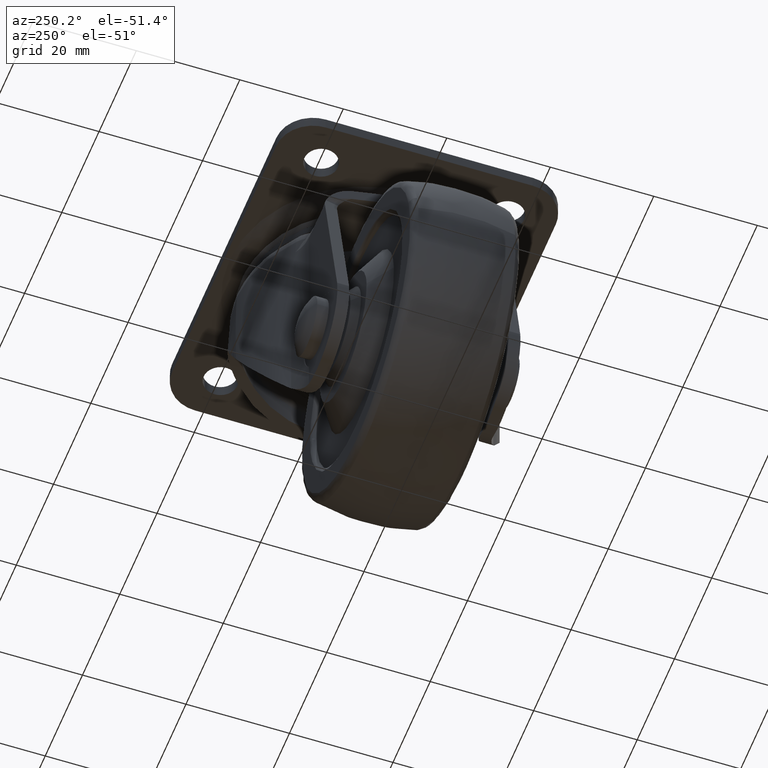
[diagram: clean part render]
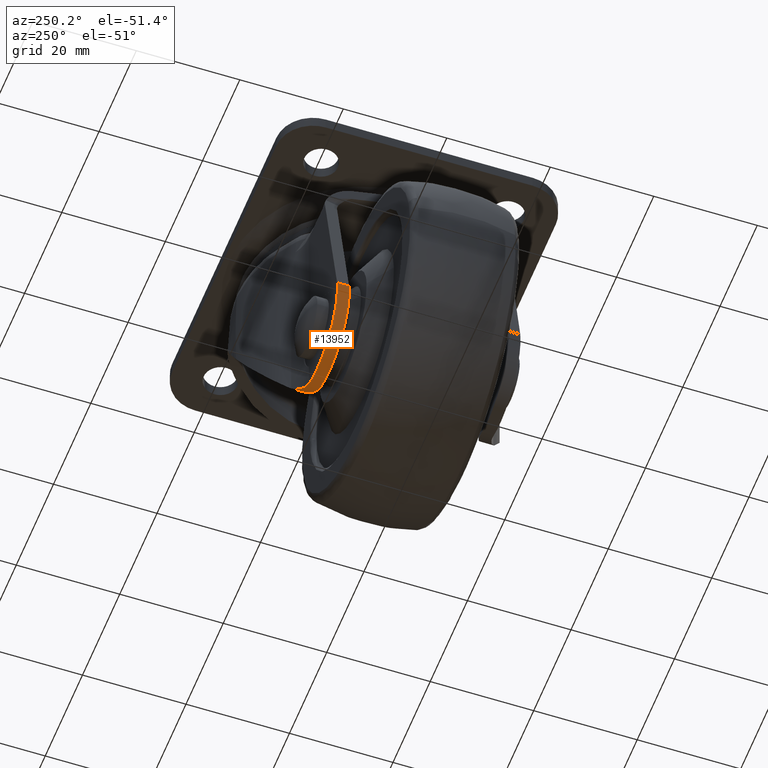
[diagram: same view with one face highlighted and labeled with its STEP entity id]
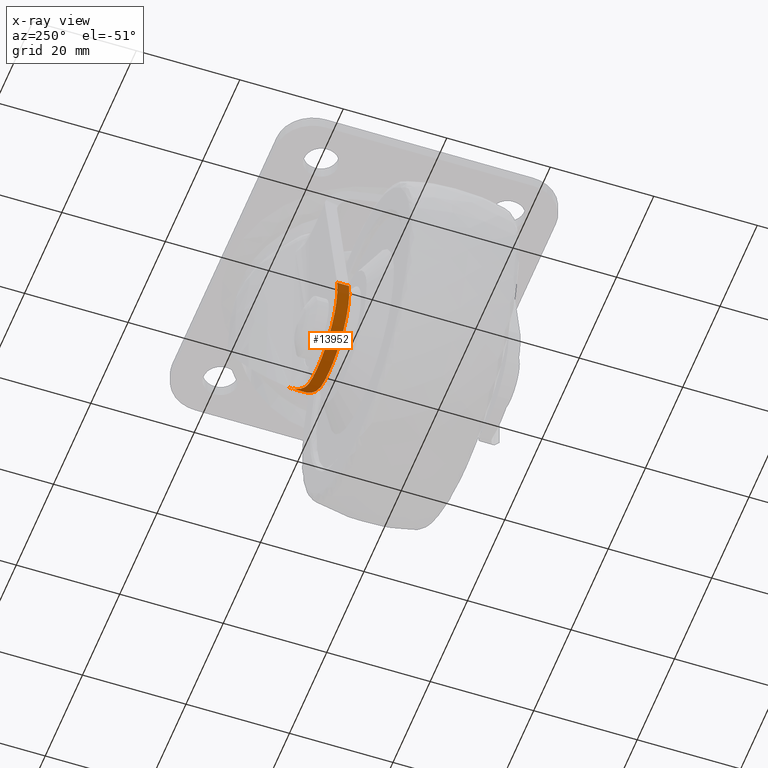
[diagram: x-ray of the same camera — body ghosted, the highlighted face saturated]
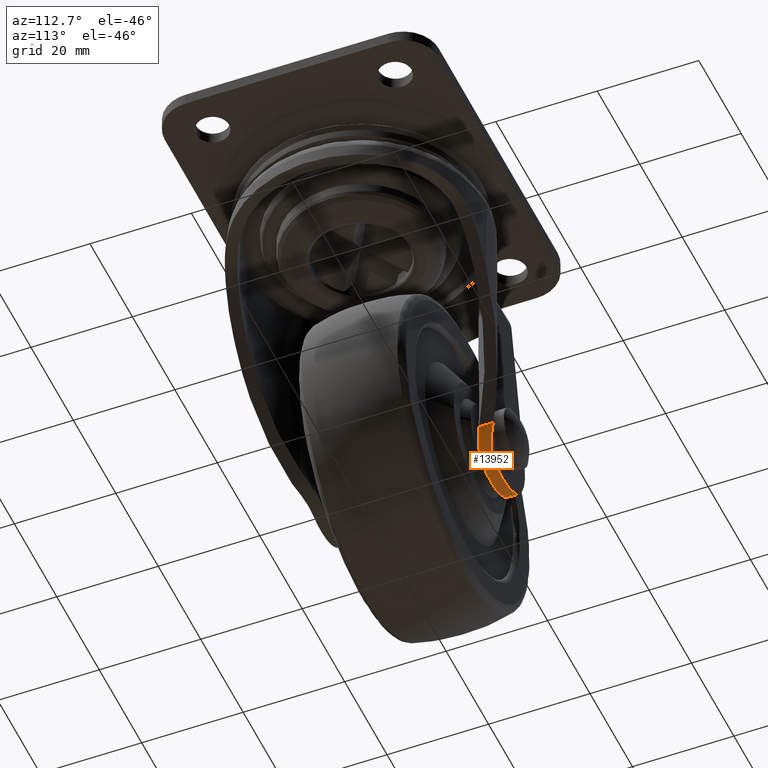
[diagram: same view with one face highlighted and labeled with its STEP entity id]
A machine part, auxiliary view. The second image highlights one B-rep face of the part: STEP entity #13952.
The next image is the same camera in x-ray: the body ghosted, the highlighted face saturated — about 0% of this face is hidden behind the body in this view.
A second angle (auxiliary view) of the same face is appended — the face is thin or edge-on in the first view.
In plain terms, the highlighted face is a freeform B-spline surface patch.
Its self-contained STEP definition (entity closure, byte-faithful):
#13827=CARTESIAN_POINT('',(-14.584685028560250,19.989959612528150,-53.950023721414453));
#13828=CARTESIAN_POINT('',(-14.584685028560250,15.280029837782420,-53.950023721414453));
#13829=CARTESIAN_POINT('',(-19.581232741208197,19.989959612528153,-61.906054317529829));
#13830=CARTESIAN_POINT('',(-19.581232741208197,15.280029837782426,-61.906054317529829));
#13831=CARTESIAN_POINT('',(-28.220943666885589,19.989959612528150,-58.215619788667162));
#13832=CARTESIAN_POINT('',(-28.220943666885589,15.280029837782420,-58.215619788667162));
#13833=CARTESIAN_POINT('',(-36.860654592563002,19.989959612528153,-54.525185259804488));
#13834=CARTESIAN_POINT('',(-36.860654592563002,15.280029837782426,-54.525185259804488));
#13835=CARTESIAN_POINT('',(-34.567203993436209,19.989959612528150,-45.414532361111860));
#13836=CARTESIAN_POINT('',(-34.567203993436209,15.280029837782420,-45.414532361111860));
#13844=(BOUNDED_SURFACE()B_SPLINE_SURFACE(1,2,((#13827,#13829,#13831,#13833,#13835),(#13828,#13830,#13832,#13834,#13836)),.UNSPECIFIED.,.F.,.F.,.U.)B_SPLINE_SURFACE_WITH_KNOTS((2,2),(3,2,3),(0.0,4.709929774745726),(0.0,16.232456992832422,32.464913985664843),.UNSPECIFIED.)GEOMETRIC_REPRESENTATION_ITEM()RATIONAL_B_SPLINE_SURFACE(((1.0,0.760405965600031,1.0,0.760405965600031,1.0),(1.0,0.760405965600031,1.0,0.760405965600031,1.0)))REPRESENTATION_ITEM('')SURFACE());
#13845=CARTESIAN_POINT('',(-34.745005646522102,17.696581632656649,-46.259749379837203));
#13846=VERTEX_POINT('',#13845);
#13847=CARTESIAN_POINT('',(-20.019497922535550,17.853252000823051,-58.392616629469813));
#13848=VERTEX_POINT('',#13847);
#13849=CARTESIAN_POINT('',(-34.745005646522102,17.696581632656649,-46.259749379837203));
#13850=CARTESIAN_POINT('',(-35.810440731135003,17.685246056994778,-52.539216016037649));
#13851=CARTESIAN_POINT('',(-30.894833408678512,17.737545103208429,-56.589358952538902));
#13852=CARTESIAN_POINT('',(-25.979226086221995,17.789844149422091,-60.639501889040147));
#13853=CARTESIAN_POINT('',(-20.019497922535550,17.853252000823051,-58.392616629469813));
#13861=(BOUNDED_CURVE()B_SPLINE_CURVE(2,(#13849,#13850,#13851,#13852,#13853),.UNSPECIFIED.,.F.,.U.)B_SPLINE_CURVE_WITH_KNOTS((3,2,3),(0.0,0.500000000000000,1.0),.UNSPECIFIED.)CURVE()GEOMETRIC_REPRESENTATION_ITEM()RATIONAL_B_SPLINE_CURVE((1.0,0.865399324793042,1.0,0.865399324793042,1.0))REPRESENTATION_ITEM(''));
#13862=EDGE_CURVE('',#13846,#13848,#13861,.T.);
#13863=ORIENTED_EDGE('',*,*,#13862,.T.);
#13864=CARTESIAN_POINT('',(-15.193558866906150,19.537611649274250,-54.822755066191313));
#13865=VERTEX_POINT('',#13864);
#13866=CARTESIAN_POINT('',(-20.019497922535550,17.853252000823051,-58.392616629469813));
#13867=CARTESIAN_POINT('',(-19.522657645432439,17.858538076563921,-58.205302197614792));
#13868=CARTESIAN_POINT('',(-19.043946497870461,17.909510013208529,-57.983972169996370));
#13869=CARTESIAN_POINT('',(-18.467246050208310,18.021270146477640,-57.665514235795413));
#13870=CARTESIAN_POINT('',(-18.353287824061709,18.046002033750870,-57.599868938586283));
#13871=CARTESIAN_POINT('',(-18.129773615824561,18.099526766632181,-57.465792123058527));
#13872=CARTESIAN_POINT('',(-18.019949368258040,18.128370186462028,-57.397214124152178));
#13873=CARTESIAN_POINT('',(-17.696007475668530,18.220691423492180,-57.186993427107971));
#13874=CARTESIAN_POINT('',(-17.487408955176068,18.289945478282860,-57.040872321058629));
#13875=CARTESIAN_POINT('',(-17.083841370772671,18.441898034508249,-56.737164688739988));
#13876=CARTESIAN_POINT('',(-16.888875522469458,18.524602735493580,-56.579576956579430));
#13877=CARTESIAN_POINT('',(-16.606087077362812,18.657578604573459,-56.334766626267523));
#13878=CARTESIAN_POINT('',(-16.513436668383729,18.703392930471448,-56.251756538333993));
#13879=CARTESIAN_POINT('',(-16.331291858827139,18.797828840275301,-56.082929978326312));
#13880=CARTESIAN_POINT('',(-16.241702489920829,18.846504819013660,-55.997018870809761));
#13881=CARTESIAN_POINT('',(-15.802552989229230,19.095909714333690,-55.561465904893943));
#13882=CARTESIAN_POINT('',(-15.484131345806960,19.311645950777748,-55.199056697091663));
#13883=CARTESIAN_POINT('',(-15.193558866906081,19.537611649274339,-54.822755066191398));
#13884=B_SPLINE_CURVE_WITH_KNOTS('',3,(#13866,#13867,#13868,#13869,#13870,#13871,#13872,#13873,#13874,#13875,#13876,#13877,#13878,#13879,#13880,#13881,#13882,#13883),.UNSPECIFIED.,.F.,.U.,(4,2,2,2,2,2,2,2,4),(0.0,0.249999999999997,0.312499999999996,0.374999999999995,0.499999999999994,0.624999999999994,0.687499999999995,0.749999999999997,1.0),.UNSPECIFIED.);
#13885=EDGE_CURVE('',#13848,#13865,#13884,.T.);
#13886=ORIENTED_EDGE('',*,*,#13885,.T.);
#13887=CARTESIAN_POINT('',(-14.745581793341140,19.877885138411649,-54.198721778351498));
#13888=VERTEX_POINT('',#13887);
#13889=CARTESIAN_POINT('',(-15.193558866906150,19.537611649274250,-54.822755066191199));
#13890=CARTESIAN_POINT('',(-15.038038723742270,19.658552964546939,-54.621350983699351));
#13891=CARTESIAN_POINT('',(-14.888573680798380,19.771812557872860,-54.413351748837471));
#13892=CARTESIAN_POINT('',(-14.745581793341049,19.877885138411710,-54.198721778351583));
#13893=QUASI_UNIFORM_CURVE('',3,(#13889,#13890,#13891,#13892),.UNSPECIFIED.,.F.,.U.);
#13894=EDGE_CURVE('',#13865,#13888,#13893,.T.);
#13895=ORIENTED_EDGE('',*,*,#13894,.T.);
#13896=CARTESIAN_POINT('',(-14.745581793341140,17.056729903750949,-54.198721778351498));
#13897=VERTEX_POINT('',#13896);
#13898=CARTESIAN_POINT('',(-14.745581793341140,19.877885138411649,-54.198721778351498));
#13899=CARTESIAN_POINT('',(-14.745581793341140,17.056729903750949,-54.198721778351498));
#13900=QUASI_UNIFORM_CURVE('',1,(#13898,#13899),.UNSPECIFIED.,.F.,.U.);
#13901=EDGE_CURVE('',#13888,#13897,#13900,.T.);
#13902=ORIENTED_EDGE('',*,*,#13901,.T.);
#13903=CARTESIAN_POINT('',(-19.995028718448751,15.553382165800651,-58.383358211924012));
#13904=VERTEX_POINT('',#13903);
#13905=CARTESIAN_POINT('',(-19.995028718448751,15.553382165800651,-58.383358211924012));
#13906=CARTESIAN_POINT('',(-19.718705031221340,15.556322080309741,-58.278429749468607));
#13907=CARTESIAN_POINT('',(-19.449606868208061,15.570272475633590,-58.163530507148252));
#13908=CARTESIAN_POINT('',(-18.924884892517561,15.617192940123809,-57.914732065916873));
#13909=CARTESIAN_POINT('',(-18.669264078902810,15.650172662988579,-57.780830093268797));
#13910=CARTESIAN_POINT('',(-18.170884614111699,15.732793562441429,-57.494488314675827));
#13911=CARTESIAN_POINT('',(-17.928127490625162,15.782441476149661,-57.342047584329400));
#13912=CARTESIAN_POINT('',(-17.573395907196470,15.867922796827781,-57.099517877903800));
#13913=CARTESIAN_POINT('',(-17.456721524168881,15.898253828023980,-57.016360031243231));
#13914=CARTESIAN_POINT('',(-17.226495663678570,15.962362119317330,-56.845382543534917));
#13915=CARTESIAN_POINT('',(-17.112800383422570,15.996193852382000,-56.757431916802922));
#13916=CARTESIAN_POINT('',(-16.557120702407140,16.171751953008592,-56.310045859444458));
#13917=CARTESIAN_POINT('',(-16.149250982473699,16.333536519678098,-55.925171923780660));
#13918=CARTESIAN_POINT('',(-15.586111814043580,16.594506005762860,-55.307926754915727));
#13919=CARTESIAN_POINT('',(-15.406570230496770,16.684574088290439,-55.095475732244097));
#13920=CARTESIAN_POINT('',(-15.149203125400760,16.822658671483250,-54.766372443530173));
#13921=CARTESIAN_POINT('',(-15.065312284716279,16.869238796993731,-54.654796623786787));
#13922=CARTESIAN_POINT('',(-14.901957119156640,16.962845174361249,-54.428694369419048));
#13923=CARTESIAN_POINT('',(-14.822624224357639,17.009791617378930,-54.314362007942833));
#13924=CARTESIAN_POINT('',(-14.745581793341060,17.056729903751059,-54.198721778351590));
#13925=B_SPLINE_CURVE_WITH_KNOTS('',3,(#13905,#13906,#13907,#13908,#13909,#13910,#13911,#13912,#13913,#13914,#13915,#13916,#13917,#13918,#13919,#13920,#13921,#13922,#13923,#13924),.UNSPECIFIED.,.F.,.U.,(4,2,2,2,2,2,2,2,2,4),(0.0,0.125000000000002,0.250000000000004,0.375000000000006,0.437500000000006,0.500000000000007,0.750000000000006,0.875000000000004,0.937500000000002,1.0),.UNSPECIFIED.);
#13926=EDGE_CURVE('',#13904,#13897,#13925,.T.);
#13927=ORIENTED_EDGE('',*,*,#13926,.F.);
#13928=CARTESIAN_POINT('',(-34.745005646522102,15.396451460313299,-46.259749379837203));
#13929=VERTEX_POINT('',#13928);
#13930=CARTESIAN_POINT('',(-34.745005646522102,15.396451460313299,-46.259749379837203));
#13931=CARTESIAN_POINT('',(-35.811902141057317,15.385100336146319,-52.547829281154812));
#13932=CARTESIAN_POINT('',(-30.884732781224152,15.437522395344420,-56.597671139169492));
#13933=CARTESIAN_POINT('',(-25.957563421390983,15.489944454542517,-60.647512997184158));
#13934=CARTESIAN_POINT('',(-19.995028718448751,15.553382165800519,-58.383358211924097));
#13942=(BOUNDED_CURVE()B_SPLINE_CURVE(2,(#13930,#13931,#13932,#13933,#13934),.UNSPECIFIED.,.F.,.U.)B_SPLINE_CURVE_WITH_KNOTS((3,2,3),(0.0,0.500000000000000,1.0),.UNSPECIFIED.)CURVE()GEOMETRIC_REPRESENTATION_ITEM()RATIONAL_B_SPLINE_CURVE((1.0,0.865101230286564,1.0,0.865101230286564,1.0))REPRESENTATION_ITEM(''));
#13943=EDGE_CURVE('',#13929,#13904,#13942,.T.);
#13944=ORIENTED_EDGE('',*,*,#13943,.F.);
#13945=CARTESIAN_POINT('',(-34.745005646522102,17.696581632656649,-46.259749379837203));
#13946=CARTESIAN_POINT('',(-34.745005646522102,15.396451460313299,-46.259749379837203));
#13947=QUASI_UNIFORM_CURVE('',1,(#13945,#13946),.UNSPECIFIED.,.F.,.U.);
#13948=EDGE_CURVE('',#13846,#13929,#13947,.T.);
#13949=ORIENTED_EDGE('',*,*,#13948,.F.);
#13950=EDGE_LOOP('',(#13863,#13886,#13895,#13902,#13927,#13944,#13949));
#13951=FACE_OUTER_BOUND('',#13950,.T.);
#13952=ADVANCED_FACE('',(#13951),#13844,.T.);